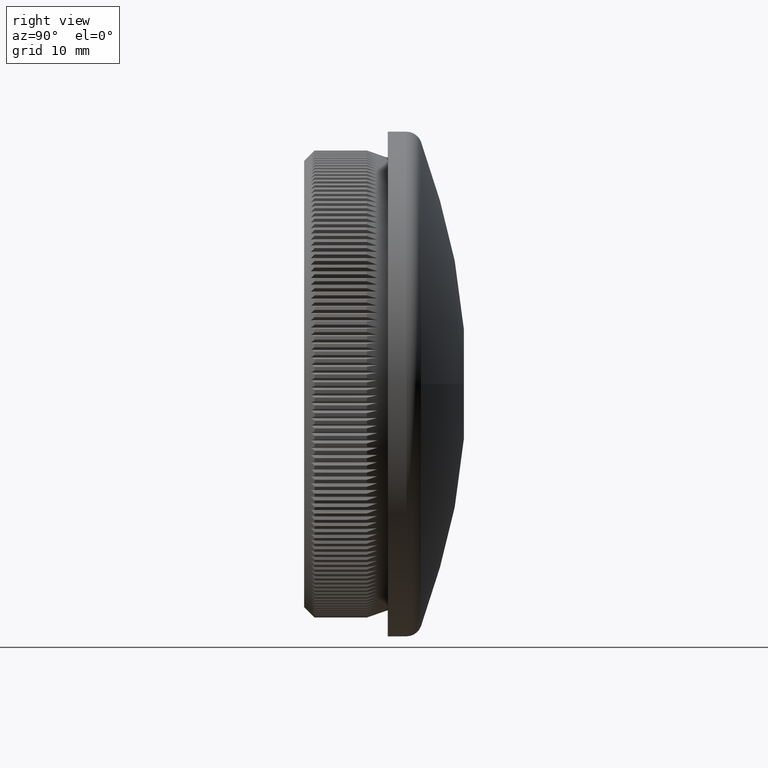
[diagram: clean part render]
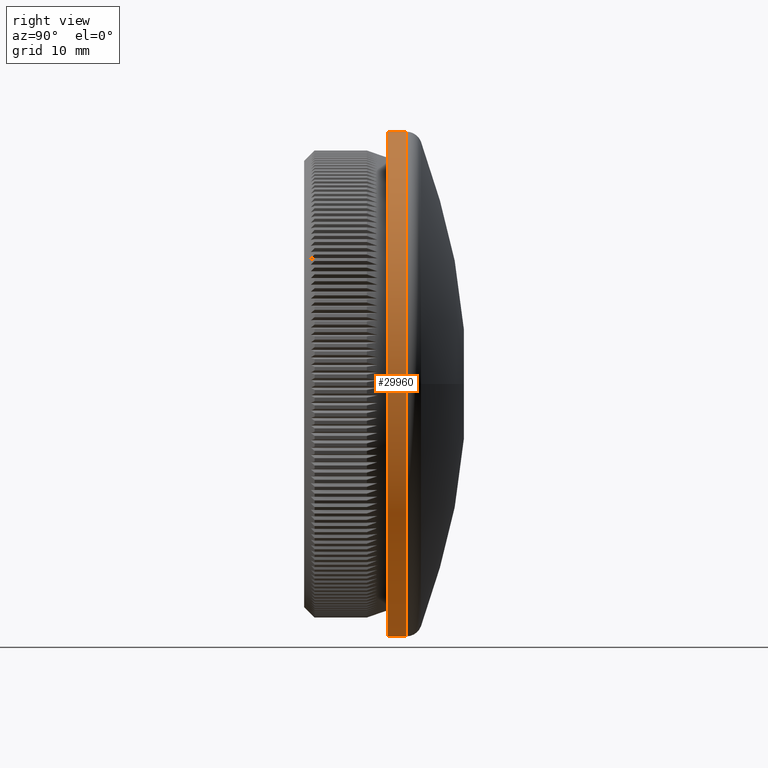
[diagram: same view with one face highlighted and labeled with its STEP entity id]
A machine part, right view. The second image highlights one B-rep face of the part: STEP entity #29960.
In plain terms, the highlighted cylindrical surface (partial cylindrical patch) has radius 24.15 mm, axis along (-0, -1, -0).
Its self-contained STEP definition (entity closure, byte-faithful):
#500 = EDGE_CURVE ( 'NONE', #17846, #19372, #21567, .T. ) ;
#933 = DIRECTION ( 'NONE',  ( 0.0000000000000000000, 0.0000000000000000000, -1.000000000000000000 ) ) ;
#934 = FACE_OUTER_BOUND ( 'NONE', #13723, .T. ) ;
#980 = DIRECTION ( 'NONE',  ( -0.0000000000000000000, -1.000000000000000000, -0.0000000000000000000 ) ) ;
#4060 = CYLINDRICAL_SURFACE ( 'NONE', #4709, 24.15000000000000200 ) ;
#4709 = AXIS2_PLACEMENT_3D ( 'NONE', #21204, #13439, #933 ) ;
#6853 = DIRECTION ( 'NONE',  ( -0.0000000000000000000, -1.000000000000000000, -0.0000000000000000000 ) ) ;
#7343 = CARTESIAN_POINT ( 'NONE',  ( 0.0000000000000000000, 8.000000000000000000, -24.14999999999999900 ) ) ;
#7919 = DIRECTION ( 'NONE',  ( -0.0000000000000000000, -1.000000000000000000, -0.0000000000000000000 ) ) ;
#9718 = DIRECTION ( 'NONE',  ( -0.0000000000000000000, -1.000000000000000000, -0.0000000000000000000 ) ) ;
#9730 = AXIS2_PLACEMENT_3D ( 'NONE', #32146, #6853, #11647 ) ;
#11647 = DIRECTION ( 'NONE',  ( 0.0000000000000000000, 0.0000000000000000000, -1.000000000000000000 ) ) ;
#12348 = ORIENTED_EDGE ( 'NONE', *, *, #30687, .F. ) ;
#13111 = ORIENTED_EDGE ( 'NONE', *, *, #23220, .T. ) ;
#13439 = DIRECTION ( 'NONE',  ( -0.0000000000000000000, -1.000000000000000000, -0.0000000000000000000 ) ) ;
#13723 = EDGE_LOOP ( 'NONE', ( #13111, #22568, #32208, #12348 ) ) ;
#13957 = VECTOR ( 'NONE', #9718, 1000.000000000000000 ) ;
#14623 = AXIS2_PLACEMENT_3D ( 'NONE', #23157, #7919, #30784 ) ;
#14890 = VECTOR ( 'NONE', #980, 1000.000000000000000 ) ;
#16231 = CARTESIAN_POINT ( 'NONE',  ( 2.957522019940858300E-015, 9.780020886796899400, 24.15000000000000200 ) ) ;
#16685 = EDGE_CURVE ( 'NONE', #27982, #19372, #18901, .T. ) ;
#17846 = VERTEX_POINT ( 'NONE', #7343 ) ;
#18901 = LINE ( 'NONE', #28542, #14890 ) ;
#19372 = VERTEX_POINT ( 'NONE', #30142 ) ;
#19516 = LINE ( 'NONE', #24691, #13957 ) ;
#20050 = CARTESIAN_POINT ( 'NONE',  ( 0.0000000000000000000, 9.780020886796899400, -24.15000000000000200 ) ) ;
#21204 = CARTESIAN_POINT ( 'NONE',  ( 0.0000000000000000000, 0.0000000000000000000, 0.0000000000000000000 ) ) ;
#21567 = CIRCLE ( 'NONE', #9730, 24.14999999999999900 ) ;
#22568 = ORIENTED_EDGE ( 'NONE', *, *, #16685, .T. ) ;
#23157 = CARTESIAN_POINT ( 'NONE',  ( 0.0000000000000000000, 9.780020886796899400, 0.0000000000000000000 ) ) ;
#23220 = EDGE_CURVE ( 'NONE', #24575, #27982, #32881, .T. ) ;
#24575 = VERTEX_POINT ( 'NONE', #20050 ) ;
#24691 = CARTESIAN_POINT ( 'NONE',  ( 0.0000000000000000000, 0.0000000000000000000, -24.15000000000000200 ) ) ;
#27982 = VERTEX_POINT ( 'NONE', #16231 ) ;
#28542 = CARTESIAN_POINT ( 'NONE',  ( 2.957522019940858300E-015, 0.0000000000000000000, 24.15000000000000200 ) ) ;
#29960 = ADVANCED_FACE ( 'NONE', ( #934 ), #4060, .T. ) ;
#30142 = CARTESIAN_POINT ( 'NONE',  ( 2.957522019940858300E-015, 8.000000000000000000, 24.14999999999999900 ) ) ;
#30687 = EDGE_CURVE ( 'NONE', #24575, #17846, #19516, .T. ) ;
#30784 = DIRECTION ( 'NONE',  ( 0.0000000000000000000, 0.0000000000000000000, -1.000000000000000000 ) ) ;
#32146 = CARTESIAN_POINT ( 'NONE',  ( 0.0000000000000000000, 8.000000000000000000, 0.0000000000000000000 ) ) ;
#32208 = ORIENTED_EDGE ( 'NONE', *, *, #500, .F. ) ;
#32881 = CIRCLE ( 'NONE', #14623, 24.15000000000000200 ) ;